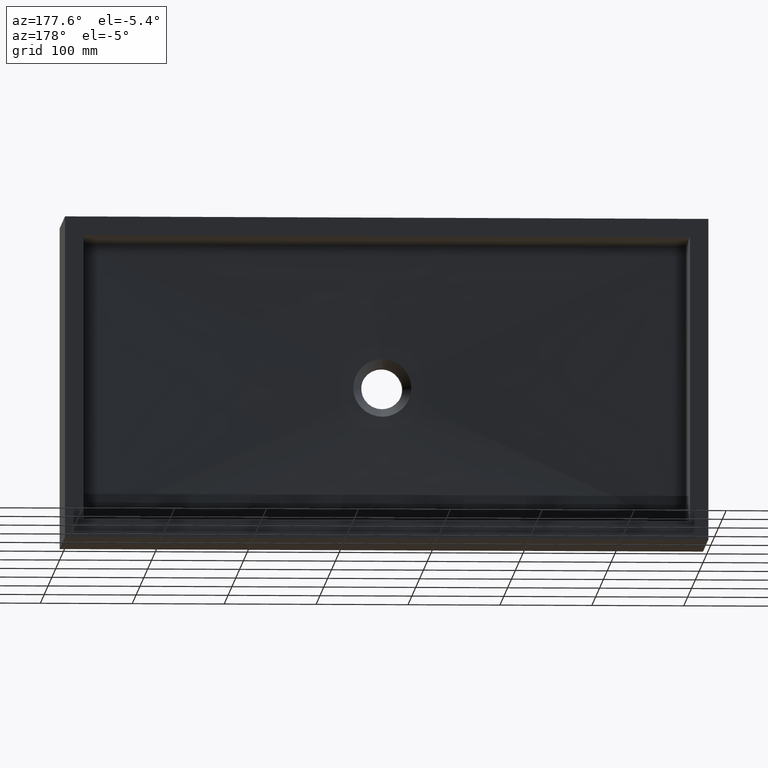
[diagram: clean part render]
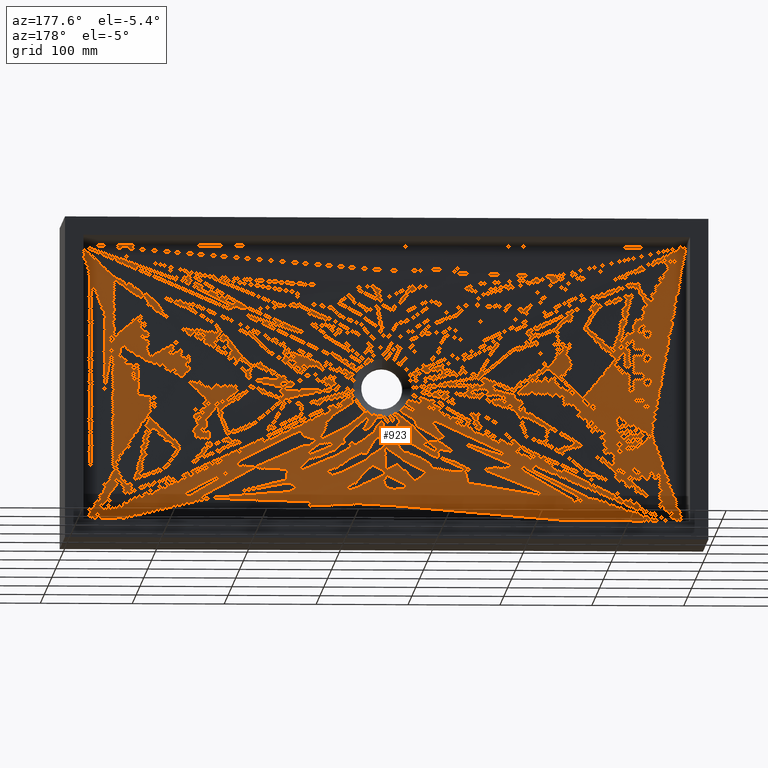
[diagram: same view with one face highlighted and labeled with its STEP entity id]
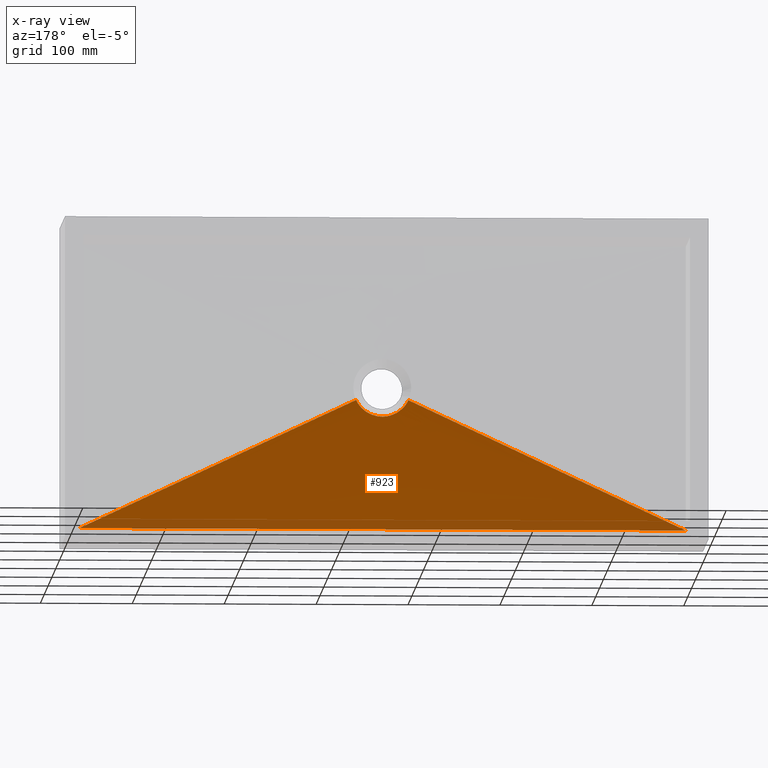
[diagram: x-ray of the same camera — body ghosted, the highlighted face saturated]
A machine part, auxiliary view. The second image highlights one B-rep face of the part: STEP entity #923.
The next image is the same camera in x-ray: the body ghosted, the highlighted face saturated — about 13% of this face is hidden behind the body in this view.
In plain terms, the highlighted face is a freeform B-spline surface patch.
Its self-contained STEP definition (entity closure, byte-faithful):
#16 = CARTESIAN_POINT ( 'NONE',  ( 348.3328162882057800, 24.99999999999999600, -206.5000000000003400 ) ) ;
#19 = B_SPLINE_CURVE_WITH_KNOTS ( 'NONE', 3,
 ( #93, #1160, #99, #386, #1174, #52, #102, #1162, #978, #1168, #56, #53 ),
 .UNSPECIFIED., .F., .F.,
 ( 4, 2, 2, 2, 2, 4 ),
 ( 0.0000000000000000000, 0.1666666667613950200, 0.3333333333964306800, 0.5000000000314662700, 0.6666666666665019800, 0.8333333333015374700 ),
 .UNSPECIFIED. ) ;
#29 = LINE ( 'NONE', #1206, #105 ) ;
#49 = CARTESIAN_POINT ( 'NONE',  ( 373.6032391787110200, 25.00000000000000700, -195.9041527679562500 ) ) ;
#52 = CARTESIAN_POINT ( 'NONE',  ( 337.2091005317990400, 25.00000000000000000, -203.8293599744644100 ) ) ;
#53 = CARTESIAN_POINT ( 'NONE',  ( 350.0000000000000000, 24.99999999999999600, -206.5000000000003100 ) ) ;
#56 = CARTESIAN_POINT ( 'NONE',  ( 348.3328162882057800, 24.99999999999999600, -206.5000000000004000 ) ) ;
#66 = ORIENTED_EDGE ( 'NONE', *, *, #954, .T. ) ;
#79 = CARTESIAN_POINT ( 'NONE',  ( 679.9999999999998900, 30.00000000000002800, -329.9999999999999400 ) ) ;
#85 = CARTESIAN_POINT ( 'NONE',  ( 294.9999999999993200, 30.00000000000000000, -329.9999999999999400 ) ) ;
#93 = CARTESIAN_POINT ( 'NONE',  ( 328.3962987751848500, 25.00000000000000000, -197.9244431423958300 ) ) ;
#99 = CARTESIAN_POINT ( 'NONE',  ( 330.5894850155407900, 24.99999999999999600, -199.8550899710944600 ) ) ;
#102 = CARTESIAN_POINT ( 'NONE',  ( 338.6966761881109800, 25.00000000000000400, -204.4470601594449300 ) ) ;
#104 = CARTESIAN_POINT ( 'NONE',  ( 323.9229975251313900, 25.00000000000000700, -192.7161647092847000 ) ) ;
#105 = VECTOR ( 'NONE', #950, 1000.000000000000000 ) ;
#108 = CARTESIAN_POINT ( 'NONE',  ( 326.3967608212889200, 25.00000000000001100, -195.9041527679563300 ) ) ;
#138 = CARTESIAN_POINT ( 'NONE',  ( 376.0770024748685500, 25.00000000000000400, -192.7161647092847300 ) ) ;
#140 = VERTEX_POINT ( 'NONE', #1093 ) ;
#203 = CARTESIAN_POINT ( 'NONE',  ( 322.5776721752322900, 25.00000000000000400, -190.5527646015677900 ) ) ;
#207 = CARTESIAN_POINT ( 'NONE',  ( 170.7442141261142300, 27.50000000000000400, -259.1958994256129400 ) ) ;
#220 = VERTEX_POINT ( 'NONE', #79 ) ;
#221 = CARTESIAN_POINT ( 'NONE',  ( 356.6062137281900300, 25.00000000000000000, -205.8440064408141800 ) ) ;
#222 = CARTESIAN_POINT ( 'NONE',  ( 529.2557858738856600, 27.50000000000000400, -259.1958994256129400 ) ) ;
#225 = ORIENTED_EDGE ( 'NONE', *, *, #662, .F. ) ;
#233 = ORIENTED_EDGE ( 'NONE', *, *, #335, .T. ) ;
#235 = CARTESIAN_POINT ( 'NONE',  ( 528.7499999999996600, 30.00000000000000000, -330.0000000000000600 ) ) ;
#247 = CARTESIAN_POINT ( 'NONE',  ( 365.6075205703248800, 25.00000000000000000, -202.4070138356910000 ) ) ;
#262 = CARTESIAN_POINT ( 'NONE',  ( 341.7890906172908700, 25.00000000000000000, -205.4544815805379900 ) ) ;
#283 = LINE ( 'NONE', #207, #556 ) ;
#309 = DIRECTION ( 'NONE',  ( -0.9050273024632505800, 0.01500932071771084900, -0.4250885814600116100 ) ) ;
#316 = CARTESIAN_POINT ( 'NONE',  ( 358.2109093827090800, 25.00000000000000700, -205.4544815805379600 ) ) ;
#329 = B_SPLINE_SURFACE_WITH_KNOTS ( 'NONE', 3, 1, ( 
 ( #698, #803 ),
 ( #702, #1005 ),
 ( #888, #565 ),
 ( #138, #798 ),
 ( #854, #911 ),
 ( #49, #493 ),
 ( #926, #697 ),
 ( #805, #1013 ),
 ( #1088, #235 ),
 ( #1017, #998 ),
 ( #247, #1007 ),
 ( #1117, #1079 ),
 ( #1046, #331 ),
 ( #788, #1037 ),
 ( #221, #1056 ),
 ( #956, #959 ),
 ( #866, #441 ),
 ( #16, #865 ),
 ( #494, #474 ),
 ( #447, #85 ),
 ( #262, #749 ),
 ( #892, #802 ),
 ( #1028, #768 ),
 ( #656, #1011 ),
 ( #715, #900 ),
 ( #1198, #942 ),
 ( #491, #1153 ),
 ( #1140, #503 ),
 ( #108, #890 ),
 ( #891, #462 ),
 ( #804, #515 ),
 ( #881, #390 ),
 ( #1158, #1204 ),
 ( #776, #502 ) ),
 .UNSPECIFIED., .F., .F., .F.,
 ( 4, 2, 2, 2, 2, 2, 2, 2, 2, 2, 2, 2, 2, 2, 2, 2, 4 ),
 ( 2, 2 ),
 ( 0.0000000000000000000, 0.06250000000000000000, 0.1250000000000000000, 0.1875000000000000000, 0.2500000000000000000, 0.3125000000000000000, 0.3750000000000000000, 0.4375000000000000000, 0.5000000000000000000, 0.5625000000000000000, 0.6250000000000000000, 0.6875000000000000000, 0.7500000000000000000, 0.8125000000000000000, 0.8750000000000000000, 0.9375000000000000000, 1.000000000000000000 ),
 ( 0.0000000000000000000, 1.000000000000000000 ),
 .UNSPECIFIED. ) ;
#331 = CARTESIAN_POINT ( 'NONE',  ( 446.2499999999994300, 30.00000000000000000, -330.0000000000000600 ) ) ;
#334 = CARTESIAN_POINT ( 'NONE',  ( 378.5115717477714300, 25.00000000000000000, -188.3917988512259900 ) ) ;
#335 = EDGE_CURVE ( 'NONE', #766, #1138, #19, .T. ) ;
#338 = CARTESIAN_POINT ( 'NONE',  ( 356.6062137281900300, 25.00000000000000000, -205.8440064408141800 ) ) ;
#348 = CARTESIAN_POINT ( 'NONE',  ( 328.3962987751848500, 25.00000000000000000, -197.9244431423958300 ) ) ;
#358 = CARTESIAN_POINT ( 'NONE',  ( 354.9702251769937800, 25.00000000000000400, -206.1054153113246900 ) ) ;
#368 = CARTESIAN_POINT ( 'NONE',  ( 326.3967608212889200, 25.00000000000001100, -195.9041527679563300 ) ) ;
#380 = EDGE_LOOP ( 'NONE', ( #812, #233, #66, #825, #1018, #571, #225 ) ) ;
#386 = CARTESIAN_POINT ( 'NONE',  ( 333.0634722785782200, 25.00000000000000000, -201.6025866820245700 ) ) ;
#390 = CARTESIAN_POINT ( 'NONE',  ( 47.49999999999990800, 30.00000000000000700, -329.9999999999999400 ) ) ;
#408 = CARTESIAN_POINT ( 'NONE',  ( 354.9702251769937800, 25.00000000000000400, -206.1054153113246900 ) ) ;
#413 = CARTESIAN_POINT ( 'NONE',  ( 327.3481446603465200, 24.99999999999999600, -196.9366761467418000 ) ) ;
#435 = CARTESIAN_POINT ( 'NONE',  ( 350.0000000000000000, 24.99999999999999600, -206.5000000000003100 ) ) ;
#441 = CARTESIAN_POINT ( 'NONE',  ( 363.7499999999993200, 30.00000000000000000, -329.9999999999999400 ) ) ;
#447 = CARTESIAN_POINT ( 'NONE',  ( 343.3937862718099200, 24.99999999999999600, -205.8440064408141300 ) ) ;
#461 = B_SPLINE_CURVE_WITH_KNOTS ( 'NONE', 3,
 ( #358, #338, #316, #517, #519, #643, #636, #527, #578, #640, #615, #524, #525, #532, #560, #572 ),
 .UNSPECIFIED., .F., .F.,
 ( 4, 2, 2, 2, 2, 2, 2, 4 ),
 ( 0.0000000000000000000, 0.1428571428105454600, 0.2857142856754545400, 0.4285714285403636200, 0.5714285714052727000, 0.7142857142701818400, 0.8571428571350908600, 1.000000000000000000 ),
 .UNSPECIFIED. ) ;
#462 = CARTESIAN_POINT ( 'NONE',  ( 88.74999999999977300, 30.00000000000000700, -330.0000000000000600 ) ) ;
#463 = CARTESIAN_POINT ( 'NONE',  ( 321.4884282522284600, 25.00000000000000000, -188.3917988512259900 ) ) ;
#469 = CARTESIAN_POINT ( 'NONE',  ( 350.0000000000000000, 24.99999999999999600, -206.5000000000003100 ) ) ;
#474 = CARTESIAN_POINT ( 'NONE',  ( 322.4999999999993200, 30.00000000000000000, -329.9999999999999400 ) ) ;
#482 = LINE ( 'NONE', #222, #1101 ) ;
#491 = CARTESIAN_POINT ( 'NONE',  ( 329.4444528947908600, 25.00000000000000000, -198.9122101425431900 ) ) ;
#493 = CARTESIAN_POINT ( 'NONE',  ( 583.7499999999996600, 30.00000000000000400, -330.0000000000000600 ) ) ;
#494 = CARTESIAN_POINT ( 'NONE',  ( 346.6657633779383300, 25.00000000000000000, -206.3668241824322300 ) ) ;
#502 = CARTESIAN_POINT ( 'NONE',  ( 20.00000000000001800, 30.00000000000000400, -329.9999999999999400 ) ) ;
#503 = CARTESIAN_POINT ( 'NONE',  ( 129.9999999999996300, 30.00000000000000700, -330.0000000000000600 ) ) ;
#510 = DIRECTION ( 'NONE',  ( 0.9050273024632505800, 0.01500932071771084700, -0.4250885814600115500 ) ) ;
#515 = CARTESIAN_POINT ( 'NONE',  ( 74.99999999999981500, 30.00000000000000700, -330.0000000000000600 ) ) ;
#517 = CARTESIAN_POINT ( 'NONE',  ( 361.3033238118888400, 25.00000000000000400, -204.4470601594449600 ) ) ;
#519 = CARTESIAN_POINT ( 'NONE',  ( 362.7908994682007900, 25.00000000000000400, -203.8293599744643800 ) ) ;
#524 = CARTESIAN_POINT ( 'NONE',  ( 375.3157496173464600, 25.00000000000001100, -193.7938639982660900 ) ) ;
#525 = CARTESIAN_POINT ( 'NONE',  ( 376.0770024748685500, 25.00000000000000400, -192.7161647092847300 ) ) ;
#527 = CARTESIAN_POINT ( 'NONE',  ( 369.4105149844590400, 25.00000000000000000, -199.8550899710945100 ) ) ;
#532 = CARTESIAN_POINT ( 'NONE',  ( 377.4223278247676500, 25.00000000000000400, -190.5527646015677900 ) ) ;
#556 = VECTOR ( 'NONE', #309, 1000.000000000000100 ) ;
#560 = CARTESIAN_POINT ( 'NONE',  ( 378.0065172057363200, 25.00000000000000400, -189.4670762633004700 ) ) ;
#565 = CARTESIAN_POINT ( 'NONE',  ( 652.4999999999998900, 30.00000000000000400, -329.9999999999999400 ) ) ;
#571 = ORIENTED_EDGE ( 'NONE', *, *, #808, .F. ) ;
#572 = CARTESIAN_POINT ( 'NONE',  ( 378.5115717477714300, 25.00000000000000000, -188.3917988512259900 ) ) ;
#578 = CARTESIAN_POINT ( 'NONE',  ( 370.5555471052089200, 24.99999999999999300, -198.9122101425432200 ) ) ;
#593 = EDGE_CURVE ( 'NONE', #980, #220, #482, .T. ) ;
#615 = CARTESIAN_POINT ( 'NONE',  ( 373.6032391787110200, 25.00000000000000700, -195.9041527679562500 ) ) ;
#636 = CARTESIAN_POINT ( 'NONE',  ( 366.9365277214216100, 24.99999999999999300, -201.6025866820245700 ) ) ;
#640 = CARTESIAN_POINT ( 'NONE',  ( 372.6518553396532500, 24.99999999999999600, -196.9366761467418300 ) ) ;
#643 = CARTESIAN_POINT ( 'NONE',  ( 365.6075205703248800, 25.00000000000000000, -202.4070138356910000 ) ) ;
#656 = CARTESIAN_POINT ( 'NONE',  ( 334.3924794296749500, 24.99999999999999600, -202.4070138356909500 ) ) ;
#662 = EDGE_CURVE ( 'NONE', #771, #140, #283, .T. ) ;
#668 = EDGE_CURVE ( 'NONE', #1104, #980, #461, .T. ) ;
#697 = CARTESIAN_POINT ( 'NONE',  ( 569.9999999999996600, 30.00000000000000000, -330.0000000000000600 ) ) ;
#698 = CARTESIAN_POINT ( 'NONE',  ( 378.5115717477714300, 25.00000000000000000, -188.3917988512259900 ) ) ;
#702 = CARTESIAN_POINT ( 'NONE',  ( 378.0065172057363200, 25.00000000000000400, -189.4670762633004700 ) ) ;
#715 = CARTESIAN_POINT ( 'NONE',  ( 333.0634722785782200, 25.00000000000000000, -201.6025866820245700 ) ) ;
#743 = CARTESIAN_POINT ( 'NONE',  ( 321.4884282522284600, 25.00000000000000000, -188.3917988512259900 ) ) ;
#749 = CARTESIAN_POINT ( 'NONE',  ( 281.2499999999993200, 30.00000000000000000, -330.0000000000000000 ) ) ;
#766 = VERTEX_POINT ( 'NONE', #1105 ) ;
#768 = CARTESIAN_POINT ( 'NONE',  ( 239.9999999999993700, 30.00000000000000000, -330.0000000000000600 ) ) ;
#771 = VERTEX_POINT ( 'NONE', #463 ) ;
#775 = B_SPLINE_CURVE_WITH_KNOTS ( 'NONE', 3,
 ( #743, #1089, #203, #104, #807, #368, #413, #348 ),
 .UNSPECIFIED., .F., .F.,
 ( 4, 2, 2, 4 ),
 ( 0.0000000000000000000, 0.3333333334175729300, 0.6666666668351458600, 1.000000000000000000 ),
 .UNSPECIFIED. ) ;
#776 = CARTESIAN_POINT ( 'NONE',  ( 321.4884282522284600, 25.00000000000000000, -188.3917988512259900 ) ) ;
#788 = CARTESIAN_POINT ( 'NONE',  ( 358.2109093827090800, 25.00000000000000700, -205.4544815805379600 ) ) ;
#798 = CARTESIAN_POINT ( 'NONE',  ( 624.9999999999997700, 30.00000000000000400, -329.9999999999999400 ) ) ;
#802 = CARTESIAN_POINT ( 'NONE',  ( 253.7499999999993700, 30.00000000000000000, -330.0000000000000600 ) ) ;
#803 = CARTESIAN_POINT ( 'NONE',  ( 679.9999999999998900, 30.00000000000000400, -329.9999999999999400 ) ) ;
#804 = CARTESIAN_POINT ( 'NONE',  ( 323.9229975251313900, 25.00000000000000700, -192.7161647092847000 ) ) ;
#805 = CARTESIAN_POINT ( 'NONE',  ( 370.5555471052089200, 24.99999999999999300, -198.9122101425432200 ) ) ;
#807 = CARTESIAN_POINT ( 'NONE',  ( 324.6842503826535400, 25.00000000000001100, -193.7938639982660300 ) ) ;
#808 = EDGE_CURVE ( 'NONE', #140, #220, #29, .T. ) ;
#812 = ORIENTED_EDGE ( 'NONE', *, *, #965, .T. ) ;
#825 = ORIENTED_EDGE ( 'NONE', *, *, #668, .T. ) ;
#854 = CARTESIAN_POINT ( 'NONE',  ( 375.3157496173464600, 25.00000000000001100, -193.7938639982660900 ) ) ;
#865 = CARTESIAN_POINT ( 'NONE',  ( 336.2499999999993200, 30.00000000000000000, -329.9999999999999400 ) ) ;
#866 = CARTESIAN_POINT ( 'NONE',  ( 351.6671837117940500, 25.00000000000000000, -206.5000000000003400 ) ) ;
#870 = CARTESIAN_POINT ( 'NONE',  ( 353.3342366220616100, 25.00000000000000700, -206.3668241824322300 ) ) ;
#881 = CARTESIAN_POINT ( 'NONE',  ( 322.5776721752322900, 25.00000000000000400, -190.5527646015677900 ) ) ;
#888 = CARTESIAN_POINT ( 'NONE',  ( 377.4223278247676500, 25.00000000000000400, -190.5527646015677900 ) ) ;
#890 = CARTESIAN_POINT ( 'NONE',  ( 116.2499999999996900, 30.00000000000001100, -330.0000000000000600 ) ) ;
#891 = CARTESIAN_POINT ( 'NONE',  ( 324.6842503826535400, 25.00000000000001100, -193.7938639982660300 ) ) ;
#892 = CARTESIAN_POINT ( 'NONE',  ( 338.6966761881109800, 25.00000000000000400, -204.4470601594449300 ) ) ;
#897 = B_SPLINE_CURVE_WITH_KNOTS ( 'NONE', 3,
 ( #469, #1123, #870, #408 ),
 .UNSPECIFIED., .F., .F.,
 ( 4, 4 ),
 ( 0.8333333333015375800, 1.000000000000000000 ),
 .UNSPECIFIED. ) ;
#900 = CARTESIAN_POINT ( 'NONE',  ( 198.7499999999994900, 30.00000000000000400, -330.0000000000000600 ) ) ;
#911 = CARTESIAN_POINT ( 'NONE',  ( 611.2499999999997700, 30.00000000000000400, -330.0000000000000000 ) ) ;
#923 = ADVANCED_FACE ( 'NONE', ( #934 ), #329, .F. ) ;
#926 = CARTESIAN_POINT ( 'NONE',  ( 372.6518553396532500, 24.99999999999999600, -196.9366761467418300 ) ) ;
#934 = FACE_OUTER_BOUND ( 'NONE', #380, .T. ) ;
#942 = CARTESIAN_POINT ( 'NONE',  ( 171.2499999999995500, 30.00000000000000700, -330.0000000000000600 ) ) ;
#950 = DIRECTION ( 'NONE',  ( 1.000000000000000000, -0.0000000000000000000, -0.0000000000000000000 ) ) ;
#954 = EDGE_CURVE ( 'NONE', #1138, #1104, #897, .T. ) ;
#956 = CARTESIAN_POINT ( 'NONE',  ( 353.3342366220615500, 25.00000000000000700, -206.3668241824322300 ) ) ;
#959 = CARTESIAN_POINT ( 'NONE',  ( 377.4999999999992600, 30.00000000000000000, -329.9999999999999400 ) ) ;
#965 = EDGE_CURVE ( 'NONE', #771, #766, #775, .T. ) ;
#978 = CARTESIAN_POINT ( 'NONE',  ( 343.3937862718099200, 24.99999999999999600, -205.8440064408141300 ) ) ;
#980 = VERTEX_POINT ( 'NONE', #334 ) ;
#998 = CARTESIAN_POINT ( 'NONE',  ( 501.2499999999995500, 30.00000000000000000, -330.0000000000000600 ) ) ;
#1005 = CARTESIAN_POINT ( 'NONE',  ( 666.2499999999998900, 30.00000000000000400, -329.9999999999999400 ) ) ;
#1007 = CARTESIAN_POINT ( 'NONE',  ( 487.4999999999994900, 30.00000000000000000, -330.0000000000000600 ) ) ;
#1011 = CARTESIAN_POINT ( 'NONE',  ( 212.4999999999994300, 30.00000000000000000, -330.0000000000000600 ) ) ;
#1013 = CARTESIAN_POINT ( 'NONE',  ( 542.4999999999995500, 30.00000000000000000, -330.0000000000000600 ) ) ;
#1017 = CARTESIAN_POINT ( 'NONE',  ( 366.9365277214216100, 24.99999999999999300, -201.6025866820245700 ) ) ;
#1018 = ORIENTED_EDGE ( 'NONE', *, *, #593, .T. ) ;
#1028 = CARTESIAN_POINT ( 'NONE',  ( 337.2091005317990400, 25.00000000000000000, -203.8293599744644100 ) ) ;
#1037 = CARTESIAN_POINT ( 'NONE',  ( 418.7499999999993700, 30.00000000000000000, -330.0000000000000600 ) ) ;
#1046 = CARTESIAN_POINT ( 'NONE',  ( 361.3033238118888400, 25.00000000000000400, -204.4470601594449600 ) ) ;
#1056 = CARTESIAN_POINT ( 'NONE',  ( 404.9999999999993700, 30.00000000000000000, -330.0000000000000600 ) ) ;
#1079 = CARTESIAN_POINT ( 'NONE',  ( 459.9999999999994300, 30.00000000000000000, -330.0000000000000600 ) ) ;
#1088 = CARTESIAN_POINT ( 'NONE',  ( 369.4105149844590400, 25.00000000000000000, -199.8550899710945100 ) ) ;
#1089 = CARTESIAN_POINT ( 'NONE',  ( 321.9934827942634600, 25.00000000000000400, -189.4670762633005000 ) ) ;
#1093 = CARTESIAN_POINT ( 'NONE',  ( 20.00000000000001800, 30.00000000000013900, -329.9999999999999400 ) ) ;
#1101 = VECTOR ( 'NONE', #510, 1000.000000000000100 ) ;
#1104 = VERTEX_POINT ( 'NONE', #1196 ) ;
#1105 = CARTESIAN_POINT ( 'NONE',  ( 328.3962987751848500, 25.00000000000000000, -197.9244431423958300 ) ) ;
#1117 = CARTESIAN_POINT ( 'NONE',  ( 362.7908994682007900, 25.00000000000000400, -203.8293599744643800 ) ) ;
#1123 = CARTESIAN_POINT ( 'NONE',  ( 351.6671837117940500, 25.00000000000000000, -206.5000000000002800 ) ) ;
#1138 = VERTEX_POINT ( 'NONE', #435 ) ;
#1140 = CARTESIAN_POINT ( 'NONE',  ( 327.3481446603465200, 24.99999999999999600, -196.9366761467418000 ) ) ;
#1153 = CARTESIAN_POINT ( 'NONE',  ( 157.4999999999995500, 30.00000000000000700, -330.0000000000000600 ) ) ;
#1158 = CARTESIAN_POINT ( 'NONE',  ( 321.9934827942634600, 25.00000000000000400, -189.4670762633005000 ) ) ;
#1160 = CARTESIAN_POINT ( 'NONE',  ( 329.4444528947908600, 25.00000000000000000, -198.9122101425431900 ) ) ;
#1162 = CARTESIAN_POINT ( 'NONE',  ( 341.7890906172908700, 25.00000000000000000, -205.4544815805379900 ) ) ;
#1168 = CARTESIAN_POINT ( 'NONE',  ( 346.6657633779383900, 25.00000000000000000, -206.3668241824322300 ) ) ;
#1174 = CARTESIAN_POINT ( 'NONE',  ( 334.3924794296749500, 24.99999999999999600, -202.4070138356909500 ) ) ;
#1196 = CARTESIAN_POINT ( 'NONE',  ( 354.9702251769937800, 25.00000000000000400, -206.1054153113246900 ) ) ;
#1198 = CARTESIAN_POINT ( 'NONE',  ( 330.5894850155407900, 24.99999999999999600, -199.8550899710944600 ) ) ;
#1204 = CARTESIAN_POINT ( 'NONE',  ( 33.74999999999995700, 30.00000000000000700, -329.9999999999999400 ) ) ;
#1206 = CARTESIAN_POINT ( 'NONE',  ( 349.9999999999993200, 30.00000000000000000, -329.9999999999999400 ) ) ;